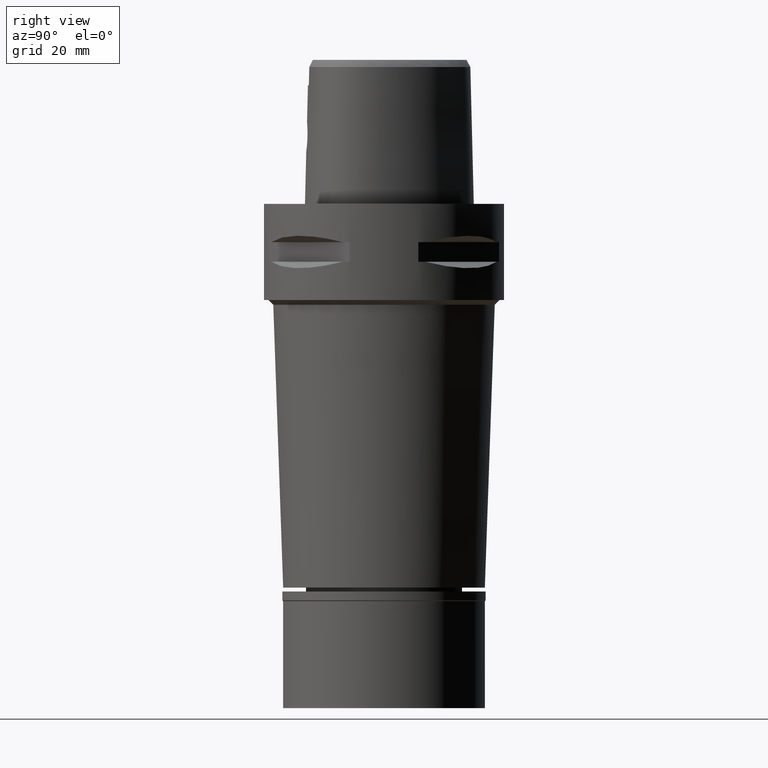
[diagram: clean part render]
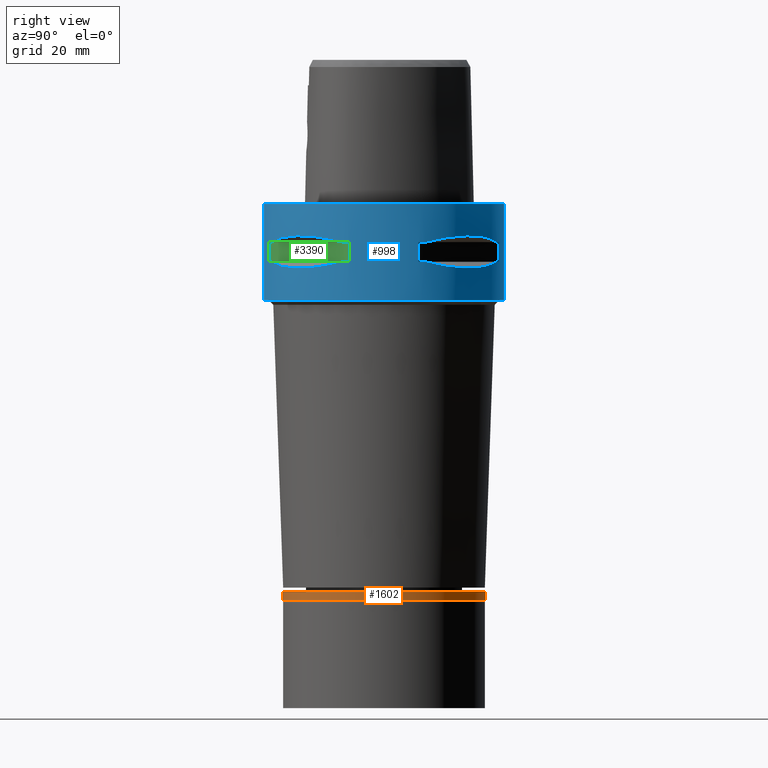
[diagram: same view with three faces highlighted in distinct colors, each labeled with its STEP entity id]
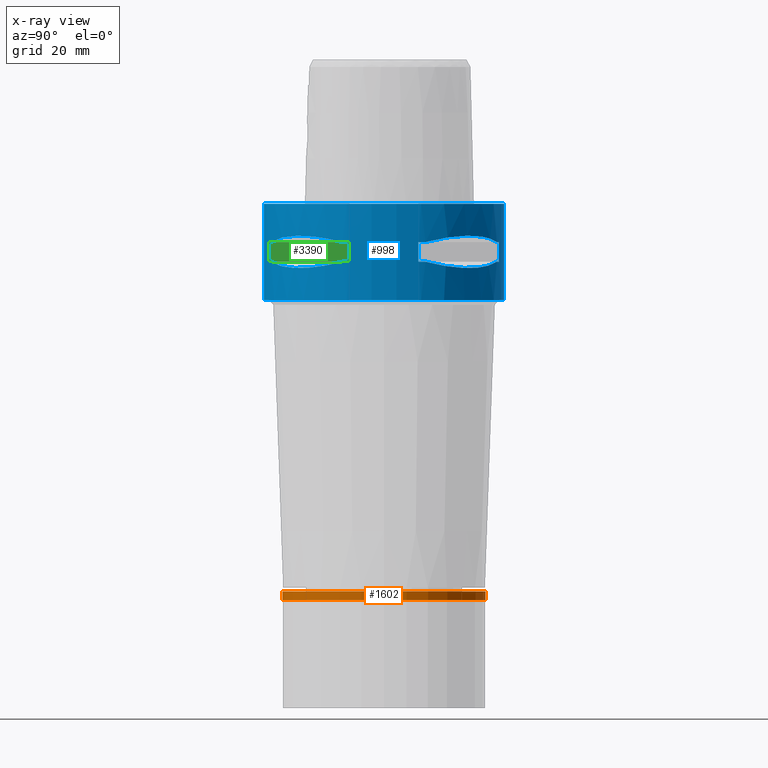
[diagram: x-ray of the same camera — body ghosted, the three highlighted faces saturated]
A machine part, right view with three faces highlighted in distinct colors.
The next image is the same camera in x-ray (body ghosted, the three faces saturated) — at least one of them is partly hidden behind the body in this view.
Their STEP definitions:

[orange] entity #1602 — the highlighted cylindrical surface (partial cylindrical patch) has radius 21.15 mm, axis along (0, 0, -1).
#52 = CARTESIAN_POINT ( 'NONE',  ( 0.0000000000000000000, 21.14999999999999858, -1.850000000000000089 ) ) ;
#74 = VERTEX_POINT ( 'NONE', #752 ) ;
#195 = CARTESIAN_POINT ( 'NONE',  ( 0.0000000000000000000, 21.14999999999999858, 0.0000000000000000000 ) ) ;
#276 = DIRECTION ( 'NONE',  ( 0.0000000000000000000, 0.0000000000000000000, -1.000000000000000000 ) ) ;
#301 = DIRECTION ( 'NONE',  ( 0.0000000000000000000, -1.000000000000000000, 0.0000000000000000000 ) ) ;
#303 = AXIS2_PLACEMENT_3D ( 'NONE', #1015, #812, #2532 ) ;
#395 = ORIENTED_EDGE ( 'NONE', *, *, #832, .F. ) ;
#512 = DIRECTION ( 'NONE',  ( 0.0000000000000000000, 0.0000000000000000000, -1.000000000000000000 ) ) ;
#614 = ORIENTED_EDGE ( 'NONE', *, *, #3418, .T. ) ;
#694 = CARTESIAN_POINT ( 'NONE',  ( 0.0000000000000000000, 0.0000000000000000000, 0.0000000000000000000 ) ) ;
#752 = CARTESIAN_POINT ( 'NONE',  ( 0.0000000000000000000, 21.14999999999999858, 0.0000000000000000000 ) ) ;
#758 = VECTOR ( 'NONE', #276, 1000.000000000000000 ) ;
#812 = DIRECTION ( 'NONE',  ( 0.0000000000000000000, 0.0000000000000000000, -1.000000000000000000 ) ) ;
#832 = EDGE_CURVE ( 'NONE', #74, #3149, #2487, .T. ) ;
#1015 = CARTESIAN_POINT ( 'NONE',  ( 0.0000000000000000000, 0.0000000000000000000, 0.0000000000000000000 ) ) ;
#1253 = EDGE_LOOP ( 'NONE', ( #614, #2496, #1974, #395 ) ) ;
#1572 = CARTESIAN_POINT ( 'NONE',  ( 0.0000000000000000000, -21.14999999999999858, 0.0000000000000000000 ) ) ;
#1602 = ADVANCED_FACE ( 'NONE', ( #3030 ), #3814, .T. ) ;
#1608 = CIRCLE ( 'NONE', #4533, 21.14999999999999858 ) ;
#1720 = DIRECTION ( 'NONE',  ( 0.0000000000000000000, 0.0000000000000000000, -1.000000000000000000 ) ) ;
#1799 = DIRECTION ( 'NONE',  ( 0.0000000000000000000, 0.0000000000000000000, 1.000000000000000000 ) ) ;
#1974 = ORIENTED_EDGE ( 'NONE', *, *, #2541, .T. ) ;
#2003 = EDGE_CURVE ( 'NONE', #4267, #2977, #2390, .T. ) ;
#2030 = CIRCLE ( 'NONE', #4793, 21.14999999999999858 ) ;
#2390 = LINE ( 'NONE', #1572, #4789 ) ;
#2487 = LINE ( 'NONE', #195, #758 ) ;
#2496 = ORIENTED_EDGE ( 'NONE', *, *, #2003, .T. ) ;
#2532 = DIRECTION ( 'NONE',  ( 0.0000000000000000000, -1.000000000000000000, 0.0000000000000000000 ) ) ;
#2539 = CARTESIAN_POINT ( 'NONE',  ( 0.0000000000000000000, 0.0000000000000000000, -1.850000000000000089 ) ) ;
#2541 = EDGE_CURVE ( 'NONE', #2977, #3149, #2030, .T. ) ;
#2574 = CARTESIAN_POINT ( 'NONE',  ( 0.0000000000000000000, -21.14999999999999858, 0.0000000000000000000 ) ) ;
#2977 = VERTEX_POINT ( 'NONE', #3931 ) ;
#3030 = FACE_OUTER_BOUND ( 'NONE', #1253, .T. ) ;
#3149 = VERTEX_POINT ( 'NONE', #52 ) ;
#3418 = EDGE_CURVE ( 'NONE', #74, #4267, #1608, .T. ) ;
#3814 = CYLINDRICAL_SURFACE ( 'NONE', #303, 21.14999999999999858 ) ;
#3931 = CARTESIAN_POINT ( 'NONE',  ( 0.0000000000000000000, -21.14999999999999858, -1.850000000000000089 ) ) ;
#3990 = DIRECTION ( 'NONE',  ( 0.0000000000000000000, 1.000000000000000000, 0.0000000000000000000 ) ) ;
#4267 = VERTEX_POINT ( 'NONE', #2574 ) ;
#4533 = AXIS2_PLACEMENT_3D ( 'NONE', #694, #1720, #3990 ) ;
#4789 = VECTOR ( 'NONE', #512, 1000.000000000000000 ) ;
#4793 = AXIS2_PLACEMENT_3D ( 'NONE', #2539, #1799, #301 ) ;

[blue] entity #998 — the highlighted cylindrical surface (partial cylindrical patch) has radius 25 mm, axis along (0, 0, -1).
#22 = CARTESIAN_POINT ( 'NONE',  ( 23.45715880140000209, 8.646484890756999775, -12.05000000000000071 ) ) ;
#48 = ORIENTED_EDGE ( 'NONE', *, *, #1483, .F. ) ;
#111 = CARTESIAN_POINT ( 'NONE',  ( 7.159921374230999724, 23.95277699797999915, -7.950000000000000178 ) ) ;
#129 = CIRCLE ( 'NONE', #2412, 24.99999999999999645 ) ;
#183 = CARTESIAN_POINT ( 'NONE',  ( 10.36314631860608593, -22.82438450745432945, -7.507504930525397135 ) ) ;
#243 = VERTEX_POINT ( 'NONE', #3034 ) ;
#271 = LINE ( 'NONE', #4782, #299 ) ;
#277 = VERTEX_POINT ( 'NONE', #3128 ) ;
#284 = ORIENTED_EDGE ( 'NONE', *, *, #3300, .F. ) ;
#293 = DIRECTION ( 'NONE',  ( 0.2863968549694120291, 0.9581110799190402094, 0.0000000000000000000 ) ) ;
#296 = ORIENTED_EDGE ( 'NONE', *, *, #4408, .T. ) ;
#299 = VECTOR ( 'NONE', #4298, 1000.000000000000000 ) ;
#351 = CARTESIAN_POINT ( 'NONE',  ( 10.36318218122983481, 22.82437128822192207, -7.507495686399606960 ) ) ;
#404 = VERTEX_POINT ( 'NONE', #2058 ) ;
#415 = CARTESIAN_POINT ( 'NONE',  ( 22.82437128822188654, -10.36318218122986856, -7.507495686399606960 ) ) ;
#485 = ORIENTED_EDGE ( 'NONE', *, *, #1908, .F. ) ;
#520 = CARTESIAN_POINT ( 'NONE',  ( 7.159921374230999724, -23.95277699797999915, -7.950000000000000178 ) ) ;
#562 = CARTESIAN_POINT ( 'NONE',  ( 23.95277699797999915, 7.159921374230999724, -7.950000000000000178 ) ) ;
#600 = AXIS2_PLACEMENT_3D ( 'NONE', #2042, #874, #2728 ) ;
#690 = CARTESIAN_POINT ( 'NONE',  ( 13.48572973711064193, -21.05082155772163688, -13.04323036965292637 ) ) ;
#722 = CARTESIAN_POINT ( 'NONE',  ( 20.06077645874710313, 15.02693924547574866, -6.733132781305681824 ) ) ;
#728 = VERTEX_POINT ( 'NONE', #4387 ) ;
#737 = CARTESIAN_POINT ( 'NONE',  ( 21.09754014381971388, 13.41274673326716282, -13.03250796600833716 ) ) ;
#766 = EDGE_CURVE ( 'NONE', #1772, #243, #2101, .T. ) ;
#805 = FACE_BOUND ( 'NONE', #1941, .T. ) ;
#822 = DIRECTION ( 'NONE',  ( 0.0000000000000000000, 0.0000000000000000000, -1.000000000000000000 ) ) ;
#831 = CIRCLE ( 'NONE', #600, 24.99999999999999645 ) ;
#833 = CARTESIAN_POINT ( 'NONE',  ( 18.30096971348435630, -17.05439749817190176, -13.37751056790094850 ) ) ;
#845 = VERTEX_POINT ( 'NONE', #1392 ) ;
#850 = EDGE_CURVE ( 'NONE', #728, #277, #129, .T. ) ;
#874 = DIRECTION ( 'NONE',  ( 0.0000000000000000000, 0.0000000000000000000, 1.000000000000000000 ) ) ;
#879 = CARTESIAN_POINT ( 'NONE',  ( 19.18226349639588690, -16.07509500018327131, -13.33749867752016449 ) ) ;
#895 = FACE_BOUND ( 'NONE', #4113, .T. ) ;
#912 = DIRECTION ( 'NONE',  ( 0.9382863520558295534, 0.3458593956303108730, 0.0000000000000000000 ) ) ;
#914 = VECTOR ( 'NONE', #949, 1000.000000000000000 ) ;
#942 = EDGE_CURVE ( 'NONE', #2945, #1302, #1493, .T. ) ;
#949 = DIRECTION ( 'NONE',  ( 0.0000000000000000000, 0.0000000000000000000, -1.000000000000000000 ) ) ;
#952 = CARTESIAN_POINT ( 'NONE',  ( 23.45715880140000209, 8.646484890751999330, -7.949999999998999201 ) ) ;
#987 = VERTEX_POINT ( 'NONE', #111 ) ;
#998 = ADVANCED_FACE ( 'NONE', ( #1610, #805, #895 ), #4556, .T. ) ;
#1002 = CARTESIAN_POINT ( 'NONE',  ( 0.0000000000000000000, 1.284348330606000068E-14, -7.950000000000000178 ) ) ;
#1024 = DIRECTION ( 'NONE',  ( 0.0000000000000000000, -1.000000000000000000, 0.0000000000000000000 ) ) ;
#1043 = LINE ( 'NONE', #2691, #1942 ) ;
#1054 = CARTESIAN_POINT ( 'NONE',  ( 14.22535762328483067, 20.56020460723039278, -13.14488865845230592 ) ) ;
#1061 = EDGE_CURVE ( 'NONE', #3734, #2086, #831, .T. ) ;
#1102 = CARTESIAN_POINT ( 'NONE',  ( 20.02826730452214932, 15.06560254769159712, -13.27075471794772277 ) ) ;
#1139 = EDGE_CURVE ( 'NONE', #2951, #987, #271, .T. ) ;
#1144 = CARTESIAN_POINT ( 'NONE',  ( 12.03062603423778754, 21.99328990739221013, -12.83394786307672675 ) ) ;
#1177 = DIRECTION ( 'NONE',  ( 0.0000000000000000000, 0.0000000000000000000, -1.000000000000000000 ) ) ;
#1215 = CARTESIAN_POINT ( 'NONE',  ( 13.55971422200820520, -21.00321793043535479, -13.05400030967370206 ) ) ;
#1218 = AXIS2_PLACEMENT_3D ( 'NONE', #4030, #1177, #293 ) ;
#1222 = DIRECTION ( 'NONE',  ( 0.0000000000000000000, 0.0000000000000000000, -1.000000000000000000 ) ) ;
#1263 = CARTESIAN_POINT ( 'NONE',  ( 20.88268233906207172, -13.74471461761599400, -13.08031795579753087 ) ) ;
#1264 = VERTEX_POINT ( 'NONE', #2068 ) ;
#1277 = CARTESIAN_POINT ( 'NONE',  ( 23.45715880140000209, 8.646484890756999775, -12.05000000000000071 ) ) ;
#1279 = AXIS2_PLACEMENT_3D ( 'NONE', #2899, #2821, #1383 ) ;
#1300 = CARTESIAN_POINT ( 'NONE',  ( 11.99631184311069099, -22.00754773658079344, -7.175632472892017333 ) ) ;
#1302 = VERTEX_POINT ( 'NONE', #3803 ) ;
#1314 = DIRECTION ( 'NONE',  ( 0.0000000000000000000, 0.0000000000000000000, 1.000000000000000000 ) ) ;
#1317 = AXIS2_PLACEMENT_3D ( 'NONE', #3954, #4670, #912 ) ;
#1321 = LINE ( 'NONE', #520, #2248 ) ;
#1332 = LINE ( 'NONE', #3213, #4865 ) ;
#1359 = ORIENTED_EDGE ( 'NONE', *, *, #850, .T. ) ;
#1383 = DIRECTION ( 'NONE',  ( 0.9581110799190402094, 0.2863968549694120291, 0.0000000000000000000 ) ) ;
#1392 = CARTESIAN_POINT ( 'NONE',  ( 23.95277699797999915, 7.159921374235000080, -7.950000000000000178 ) ) ;
#1402 = AXIS2_PLACEMENT_3D ( 'NONE', #2093, #1718, #1024 ) ;
#1455 = ORIENTED_EDGE ( 'NONE', *, *, #4783, .T. ) ;
#1468 = CARTESIAN_POINT ( 'NONE',  ( 23.13678124604550845, 9.515641234313701347, -12.27403800213050111 ) ) ;
#1481 = CIRCLE ( 'NONE', #2520, 25.00000000000000000 ) ;
#1483 = EDGE_CURVE ( 'NONE', #728, #243, #1332, .T. ) ;
#1490 = CARTESIAN_POINT ( 'NONE',  ( 21.82791133047632215, 12.20403021319857828, -12.83722430139150994 ) ) ;
#1493 = B_SPLINE_CURVE_WITH_KNOTS ( 'NONE', 3,
 ( #22, #1468, #1919, #1490, #3762, #4468, #737, #4096, #1514, #2635, #1102, #4441, #2287, #3785, #3423, #1054, #2660, #2199, #3021, #4531, #3739, #1144, #2983, #3696 ),
 .UNSPECIFIED., .F., .F.,
 ( 4, 1, 1, 1, 1, 1, 2, 2, 2, 1, 1, 1, 1, 1, 2, 2, 4 ),
 ( 0.0000000000000000000, 0.1249999999999982236, 0.1874999999999974465, 0.2187499999999970302, 0.2343749999999969469, 0.2421874999999968081, 0.2460937499999968359, 0.2499999999999968914, 0.4999999999999973355, 0.6249999999999973355, 0.6874999999999976685, 0.7187499999999978906, 0.7343749999999980016, 0.7421874999999980016, 0.7460937499999978906, 0.7499999999999978906, 1.000000000000000000 ),
 .UNSPECIFIED. ) ;
#1514 = CARTESIAN_POINT ( 'NONE',  ( 21.01958685664017068, 13.53433973752500918, -13.05032380590188446 ) ) ;
#1535 = EDGE_CURVE ( 'NONE', #1881, #987, #2024, .T. ) ;
#1539 = AXIS2_PLACEMENT_3D ( 'NONE', #2704, #2406, #3092 ) ;
#1591 = CARTESIAN_POINT ( 'NONE',  ( 13.53433973752400554, -21.01958685664054372, -13.05032380590162333 ) ) ;
#1610 = FACE_OUTER_BOUND ( 'NONE', #3160, .T. ) ;
#1635 = EDGE_CURVE ( 'NONE', #2951, #1302, #3437, .T. ) ;
#1636 = CARTESIAN_POINT ( 'NONE',  ( 0.0000000000000000000, 1.284348330606000068E-14, -12.05000000000000071 ) ) ;
#1664 = EDGE_CURVE ( 'NONE', #404, #4878, #1043, .T. ) ;
#1671 = CARTESIAN_POINT ( 'NONE',  ( 23.45715880140000209, -8.646484890751999330, -12.05000000000000071 ) ) ;
#1718 = DIRECTION ( 'NONE',  ( 0.0000000000000000000, 0.0000000000000000000, 1.000000000000000000 ) ) ;
#1772 = VERTEX_POINT ( 'NONE', #4599 ) ;
#1819 = ORIENTED_EDGE ( 'NONE', *, *, #1635, .T. ) ;
#1848 = CARTESIAN_POINT ( 'NONE',  ( 22.00754773658079344, 11.99631184311074428, -7.175632472892017333 ) ) ;
#1856 = EDGE_CURVE ( 'NONE', #845, #2414, #3936, .T. ) ;
#1881 = VERTEX_POINT ( 'NONE', #2461 ) ;
#1908 = EDGE_CURVE ( 'NONE', #4563, #277, #4570, .T. ) ;
#1919 = CARTESIAN_POINT ( 'NONE',  ( 22.58788056560981516, 10.78455809748034788, -12.56798337783676267 ) ) ;
#1941 = EDGE_LOOP ( 'NONE', ( #1960, #48, #1359, #485, #3098, #4591, #4524, #3733 ) ) ;
#1942 = VECTOR ( 'NONE', #3292, 1000.000000000000000 ) ;
#1950 = CARTESIAN_POINT ( 'NONE',  ( 15.06560254765663132, -20.02826730455345583, -13.27075471794622885 ) ) ;
#1960 = ORIENTED_EDGE ( 'NONE', *, *, #766, .T. ) ;
#2024 = CIRCLE ( 'NONE', #2259, 25.00000000000001066 ) ;
#2042 = CARTESIAN_POINT ( 'NONE',  ( 0.0000000000000000000, 1.284348330606000068E-14, -7.950000000000000178 ) ) ;
#2058 = CARTESIAN_POINT ( 'NONE',  ( 0.0000000000000000000, -25.00000000000000000, 0.0000000000000000000 ) ) ;
#2059 = CARTESIAN_POINT ( 'NONE',  ( 7.159921374235000080, -23.95277699797999915, -7.950000000000000178 ) ) ;
#2068 = CARTESIAN_POINT ( 'NONE',  ( 0.0000000000000000000, 25.00000000000000000, -20.00000000000000000 ) ) ;
#2082 = CARTESIAN_POINT ( 'NONE',  ( 16.42437865151175558, -18.93096040781560774, -6.622505547253060953 ) ) ;
#2086 = VERTEX_POINT ( 'NONE', #3498 ) ;
#2093 = CARTESIAN_POINT ( 'NONE',  ( 0.0000000000000000000, 1.284348330606000068E-14, -20.00000000000000000 ) ) ;
#2101 = CIRCLE ( 'NONE', #2885, 25.00000000000001066 ) ;
#2110 = CARTESIAN_POINT ( 'NONE',  ( 0.0000000000000000000, 1.284348330606000068E-14, -7.950000000000000178 ) ) ;
#2167 = CIRCLE ( 'NONE', #1279, 24.99999999999999645 ) ;
#2194 = CARTESIAN_POINT ( 'NONE',  ( 12.20403021317722292, -21.82791133048418786, -12.83722430138600323 ) ) ;
#2199 = CARTESIAN_POINT ( 'NONE',  ( 13.74471461761685198, 20.88268233906084248, -13.08031795579737455 ) ) ;
#2223 = CARTESIAN_POINT ( 'NONE',  ( 15.02698525050126044, 20.06074199764951871, -6.733118915116994785 ) ) ;
#2248 = VECTOR ( 'NONE', #1222, 1000.000000000000000 ) ;
#2259 = AXIS2_PLACEMENT_3D ( 'NONE', #2110, #3608, #3242 ) ;
#2282 = DIRECTION ( 'NONE',  ( 0.0000000000000000000, 0.0000000000000000000, -1.000000000000000000 ) ) ;
#2287 = CARTESIAN_POINT ( 'NONE',  ( 17.05439749817592343, 18.30096971347850499, -13.37751056790020598 ) ) ;
#2314 = CARTESIAN_POINT ( 'NONE',  ( 20.95817024473895174, -13.62920640916654591, -13.06397973560678061 ) ) ;
#2339 = CARTESIAN_POINT ( 'NONE',  ( 20.56020460723486565, -14.22535762328174691, -13.14488865845287080 ) ) ;
#2342 = AXIS2_PLACEMENT_3D ( 'NONE', #1636, #822, #3537 ) ;
#2369 = ORIENTED_EDGE ( 'NONE', *, *, #4655, .T. ) ;
#2406 = DIRECTION ( 'NONE',  ( 0.0000000000000000000, 0.0000000000000000000, -1.000000000000000000 ) ) ;
#2412 = AXIS2_PLACEMENT_3D ( 'NONE', #3278, #2908, #4413 ) ;
#2414 = VERTEX_POINT ( 'NONE', #3516 ) ;
#2444 = ORIENTED_EDGE ( 'NONE', *, *, #1664, .T. ) ;
#2461 = CARTESIAN_POINT ( 'NONE',  ( 8.646484890751999330, 23.45715880140000209, -7.949999999998999201 ) ) ;
#2464 = CARTESIAN_POINT ( 'NONE',  ( 22.82438450745431524, 10.36314631860615876, -7.507504930525397135 ) ) ;
#2498 = CARTESIAN_POINT ( 'NONE',  ( 7.159921374230999724, -23.95277699797999915, -12.05000000000000071 ) ) ;
#2520 = AXIS2_PLACEMENT_3D ( 'NONE', #4290, #2282, #2817 ) ;
#2555 = ORIENTED_EDGE ( 'NONE', *, *, #942, .F. ) ;
#2598 = CARTESIAN_POINT ( 'NONE',  ( 16.42437865151178045, 18.93096040781560063, -6.622496303226941272 ) ) ;
#2635 = CARTESIAN_POINT ( 'NONE',  ( 21.00321793043583796, 13.55971422200765630, -13.05400030967367897 ) ) ;
#2660 = CARTESIAN_POINT ( 'NONE',  ( 13.90573822668135406, 20.77616787493428774, -13.10257122103294058 ) ) ;
#2689 = EDGE_CURVE ( 'NONE', #4563, #4010, #2978, .T. ) ;
#2691 = CARTESIAN_POINT ( 'NONE',  ( 0.0000000000000000000, -25.00000000000000000, 0.0000000000000000000 ) ) ;
#2704 = CARTESIAN_POINT ( 'NONE',  ( 0.0000000000000000000, 1.284348330606000068E-14, 4.875000000000000000 ) ) ;
#2728 = DIRECTION ( 'NONE',  ( 0.2863968549694120291, -0.9581110799190402094, 0.0000000000000000000 ) ) ;
#2734 = CARTESIAN_POINT ( 'NONE',  ( 20.77616787493668937, -13.90573822667970916, -13.10257122103325145 ) ) ;
#2782 = ORIENTED_EDGE ( 'NONE', *, *, #3688, .T. ) ;
#2817 = DIRECTION ( 'NONE',  ( 0.0000000000000000000, 1.000000000000000000, 0.0000000000000000000 ) ) ;
#2821 = DIRECTION ( 'NONE',  ( 0.0000000000000000000, 0.0000000000000000000, 1.000000000000000000 ) ) ;
#2829 = DIRECTION ( 'NONE',  ( 0.9382863520558295534, -0.3458593956303108730, 0.0000000000000000000 ) ) ;
#2862 = CARTESIAN_POINT ( 'NONE',  ( 0.0000000000000000000, -25.00000000000000000, -20.00000000000000000 ) ) ;
#2882 = VERTEX_POINT ( 'NONE', #4323 ) ;
#2885 = AXIS2_PLACEMENT_3D ( 'NONE', #1002, #1314, #2829 ) ;
#2898 = EDGE_CURVE ( 'NONE', #845, #2882, #2167, .T. ) ;
#2899 = CARTESIAN_POINT ( 'NONE',  ( 0.0000000000000000000, 1.284348330606000068E-14, -7.950000000000000178 ) ) ;
#2908 = DIRECTION ( 'NONE',  ( 0.0000000000000000000, 0.0000000000000000000, -1.000000000000000000 ) ) ;
#2911 = CIRCLE ( 'NONE', #1402, 25.00000000000000000 ) ;
#2926 = B_SPLINE_CURVE_WITH_KNOTS ( 'NONE', 3,
 ( #952, #2464, #1848, #722, #2957, #2598, #2223, #3720, #351, #3354 ),
 .UNSPECIFIED., .F., .F.,
 ( 4, 2, 2, 2, 4 ),
 ( 0.0000000000000000000, 0.2500000000000000000, 0.5000000000000000000, 0.7500000000000000000, 1.000000000000000000 ),
 .UNSPECIFIED. ) ;
#2945 = VERTEX_POINT ( 'NONE', #1277 ) ;
#2951 = VERTEX_POINT ( 'NONE', #4753 ) ;
#2954 = CARTESIAN_POINT ( 'NONE',  ( 10.78455809745186755, -22.58788056562029922, -12.56798337782941566 ) ) ;
#2957 = CARTESIAN_POINT ( 'NONE',  ( 18.93096040781554024, 16.42437865151185505, -6.622505547253060953 ) ) ;
#2978 = CIRCLE ( 'NONE', #2342, 25.00000000000001066 ) ;
#2983 = CARTESIAN_POINT ( 'NONE',  ( 10.38516041958474645, 22.81626994451295332, -12.49816953211793802 ) ) ;
#3021 = CARTESIAN_POINT ( 'NONE',  ( 13.67544437571146609, 20.92801700160250533, -13.07054629644086674 ) ) ;
#3034 = CARTESIAN_POINT ( 'NONE',  ( 23.95277699797999915, -7.159921374230999724, -7.950000000000000178 ) ) ;
#3042 = CARTESIAN_POINT ( 'NONE',  ( 23.45715880140000209, -8.646484890751999330, -7.949999999998999201 ) ) ;
#3069 = ORIENTED_EDGE ( 'NONE', *, *, #1856, .F. ) ;
#3092 = DIRECTION ( 'NONE',  ( 0.0000000000000000000, -1.000000000000000000, 0.0000000000000000000 ) ) ;
#3098 = ORIENTED_EDGE ( 'NONE', *, *, #2689, .T. ) ;
#3128 = CARTESIAN_POINT ( 'NONE',  ( 23.45715880140000209, -8.646484890751999330, -12.05000000000000071 ) ) ;
#3160 = EDGE_LOOP ( 'NONE', ( #2369, #2444, #296, #284 ) ) ;
#3210 = CARTESIAN_POINT ( 'NONE',  ( 20.06074199764950095, -15.02698525050125156, -6.733118915116994785 ) ) ;
#3213 = CARTESIAN_POINT ( 'NONE',  ( 23.95277699797999915, -7.159921374230999724, -12.05000000000000071 ) ) ;
#3242 = DIRECTION ( 'NONE',  ( 0.3458593956303108730, 0.9382863520558295534, 0.0000000000000000000 ) ) ;
#3278 = CARTESIAN_POINT ( 'NONE',  ( 0.0000000000000000000, 1.284348330606000068E-14, -12.05000000000000071 ) ) ;
#3292 = DIRECTION ( 'NONE',  ( 0.0000000000000000000, 0.0000000000000000000, -1.000000000000000000 ) ) ;
#3300 = EDGE_CURVE ( 'NONE', #4343, #1264, #3919, .T. ) ;
#3305 = EDGE_CURVE ( 'NONE', #3734, #4010, #1321, .T. ) ;
#3330 = CARTESIAN_POINT ( 'NONE',  ( 13.41274673326371314, -21.09754014382099285, -13.03250796600744721 ) ) ;
#3354 = CARTESIAN_POINT ( 'NONE',  ( 8.646484890751999330, 23.45715880140000209, -7.949999999998999201 ) ) ;
#3423 = CARTESIAN_POINT ( 'NONE',  ( 14.85488513038957592, 20.11654071401955335, -13.22076716108393413 ) ) ;
#3437 = CIRCLE ( 'NONE', #1218, 24.99999999999999645 ) ;
#3460 = CIRCLE ( 'NONE', #1317, 25.00000000000001066 ) ;
#3498 = CARTESIAN_POINT ( 'NONE',  ( 8.646484890751999330, -23.45715880140000209, -7.949999999998999201 ) ) ;
#3516 = CARTESIAN_POINT ( 'NONE',  ( 23.95277699797999915, 7.159921374230999724, -12.05000000000000071 ) ) ;
#3537 = DIRECTION ( 'NONE',  ( 0.3458593956303108730, -0.9382863520558295534, 0.0000000000000000000 ) ) ;
#3546 = CARTESIAN_POINT ( 'NONE',  ( 20.97251445226583755, -13.60713573003076071, -13.06082541678112641 ) ) ;
#3555 = CARTESIAN_POINT ( 'NONE',  ( 8.646484890751999330, -23.45715880140000209, -7.949999999998999201 ) ) ;
#3579 = CARTESIAN_POINT ( 'NONE',  ( 18.93096040781557221, -16.42437865151179466, -6.622496303226941272 ) ) ;
#3608 = DIRECTION ( 'NONE',  ( 0.0000000000000000000, 0.0000000000000000000, 1.000000000000000000 ) ) ;
#3679 = ORIENTED_EDGE ( 'NONE', *, *, #2898, .T. ) ;
#3688 = EDGE_CURVE ( 'NONE', #2882, #1881, #2926, .T. ) ;
#3690 = CARTESIAN_POINT ( 'NONE',  ( 12.89853354821786624, -21.41803043592453548, -12.95342092614003349 ) ) ;
#3696 = CARTESIAN_POINT ( 'NONE',  ( 8.646484890751999330, 23.45715880140000209, -12.05000000000000071 ) ) ;
#3720 = CARTESIAN_POINT ( 'NONE',  ( 11.99636231264435615, 22.00752022556853404, -7.175618606703328517 ) ) ;
#3733 = ORIENTED_EDGE ( 'NONE', *, *, #4813, .T. ) ;
#3734 = VERTEX_POINT ( 'NONE', #2059 ) ;
#3736 = CARTESIAN_POINT ( 'NONE',  ( 8.646484890756999775, -23.45715880140000209, -12.05000000000000071 ) ) ;
#3738 = VECTOR ( 'NONE', #4314, 1000.000000000000000 ) ;
#3739 = CARTESIAN_POINT ( 'NONE',  ( 13.60713573003037880, 20.97251445226597966, -13.06082541678103404 ) ) ;
#3762 = CARTESIAN_POINT ( 'NONE',  ( 21.41803043591995959, 12.89853354823032738, -12.95342092614324869 ) ) ;
#3785 = CARTESIAN_POINT ( 'NONE',  ( 16.07509500019029502, 19.18226349638565509, -13.33749867751885532 ) ) ;
#3803 = CARTESIAN_POINT ( 'NONE',  ( 8.646484890751999330, 23.45715880140000209, -12.05000000000000071 ) ) ;
#3864 = CARTESIAN_POINT ( 'NONE',  ( 20.92801700160322298, -13.67544437571097404, -13.07054629644096444 ) ) ;
#3885 = CARTESIAN_POINT ( 'NONE',  ( 21.99328990740119139, -12.03062603421341770, -12.83394786307044022 ) ) ;
#3912 = CARTESIAN_POINT ( 'NONE',  ( 22.81626994452193458, -10.38516041956038727, -12.49816953211166037 ) ) ;
#3919 = LINE ( 'NONE', #4338, #3738 ) ;
#3936 = LINE ( 'NONE', #562, #914 ) ;
#3954 = CARTESIAN_POINT ( 'NONE',  ( 0.0000000000000000000, 1.284348330606000068E-14, -12.05000000000000071 ) ) ;
#3968 = ORIENTED_EDGE ( 'NONE', *, *, #1535, .T. ) ;
#3981 = DIRECTION ( 'NONE',  ( 0.0000000000000000000, 0.0000000000000000000, 1.000000000000000000 ) ) ;
#4010 = VERTEX_POINT ( 'NONE', #2498 ) ;
#4030 = CARTESIAN_POINT ( 'NONE',  ( 0.0000000000000000000, 1.284348330606000068E-14, -12.05000000000000071 ) ) ;
#4063 = CARTESIAN_POINT ( 'NONE',  ( 8.646484890756999775, -23.45715880140000209, -12.05000000000000071 ) ) ;
#4096 = CARTESIAN_POINT ( 'NONE',  ( 21.05082155772089436, 13.48572973711263323, -13.04323036965343618 ) ) ;
#4113 = EDGE_LOOP ( 'NONE', ( #3968, #4181, #1819, #2555, #1455, #3069, #3679, #2782 ) ) ;
#4133 = B_SPLINE_CURVE_WITH_KNOTS ( 'NONE', 3,
 ( #3555, #183, #1300, #4319, #2082, #3579, #3210, #4156, #415, #3042 ),
 .UNSPECIFIED., .F., .F.,
 ( 4, 2, 2, 2, 4 ),
 ( 0.0000000000000000000, 0.2500000000000000000, 0.5000000000000000000, 0.7500000000000000000, 1.000000000000000000 ),
 .UNSPECIFIED. ) ;
#4156 = CARTESIAN_POINT ( 'NONE',  ( 22.00752022556849496, -11.99636231264437214, -7.175618606703328517 ) ) ;
#4181 = ORIENTED_EDGE ( 'NONE', *, *, #1139, .F. ) ;
#4290 = CARTESIAN_POINT ( 'NONE',  ( 0.0000000000000000000, 1.284348330606000068E-14, 0.0000000000000000000 ) ) ;
#4298 = DIRECTION ( 'NONE',  ( 0.0000000000000000000, 0.0000000000000000000, 1.000000000000000000 ) ) ;
#4314 = DIRECTION ( 'NONE',  ( 0.0000000000000000000, 0.0000000000000000000, -1.000000000000000000 ) ) ;
#4319 = CARTESIAN_POINT ( 'NONE',  ( 15.02693924547570070, -20.06077645874711379, -6.733132781305681824 ) ) ;
#4323 = CARTESIAN_POINT ( 'NONE',  ( 23.45715880140000209, 8.646484890751999330, -7.949999999998999201 ) ) ;
#4338 = CARTESIAN_POINT ( 'NONE',  ( 0.0000000000000000000, 25.00000000000000000, 0.0000000000000000000 ) ) ;
#4343 = VERTEX_POINT ( 'NONE', #4494 ) ;
#4387 = CARTESIAN_POINT ( 'NONE',  ( 23.95277699797999915, -7.159921374235000080, -12.05000000000000071 ) ) ;
#4408 = EDGE_CURVE ( 'NONE', #4878, #1264, #2911, .T. ) ;
#4413 = DIRECTION ( 'NONE',  ( 0.9581110799190402094, -0.2863968549694120291, 0.0000000000000000000 ) ) ;
#4441 = CARTESIAN_POINT ( 'NONE',  ( 18.92421359264142211, 16.43106916203626611, -13.37747608848383329 ) ) ;
#4461 = CARTESIAN_POINT ( 'NONE',  ( 13.24197703503267931, -21.20561591939681634, -13.00691327926098495 ) ) ;
#4468 = CARTESIAN_POINT ( 'NONE',  ( 21.20561591939435786, 13.24197703503935486, -13.00691327926270446 ) ) ;
#4494 = CARTESIAN_POINT ( 'NONE',  ( 0.0000000000000000000, 25.00000000000000000, 0.0000000000000000000 ) ) ;
#4524 = ORIENTED_EDGE ( 'NONE', *, *, #1061, .T. ) ;
#4531 = CARTESIAN_POINT ( 'NONE',  ( 13.62920640916679993, 20.95817024473859291, -13.06397973560673265 ) ) ;
#4556 = CYLINDRICAL_SURFACE ( 'NONE', #1539, 25.00000000000000000 ) ;
#4563 = VERTEX_POINT ( 'NONE', #3736 ) ;
#4570 = B_SPLINE_CURVE_WITH_KNOTS ( 'NONE', 3,
 ( #4063, #4837, #2954, #2194, #3690, #4461, #3330, #690, #1591, #1215, #1950, #4661, #833, #879, #4634, #2339, #2734, #1263, #3864, #2314, #3546, #3885, #3912, #1671 ),
 .UNSPECIFIED., .F., .F.,
 ( 4, 1, 1, 1, 1, 1, 2, 2, 2, 1, 1, 1, 1, 1, 2, 2, 4 ),
 ( 0.0000000000000000000, 0.1250000000000068834, 0.1875000000000101308, 0.2187500000000117406, 0.2343750000000125733, 0.2421875000000129341, 0.2460937500000130174, 0.2500000000000131006, 0.5000000000000111022, 0.6250000000000101030, 0.6875000000000099920, 0.7187500000000099920, 0.7343750000000099920, 0.7421875000000098810, 0.7460937500000098810, 0.7500000000000098810, 1.000000000000000000 ),
 .UNSPECIFIED. ) ;
#4591 = ORIENTED_EDGE ( 'NONE', *, *, #3305, .F. ) ;
#4599 = CARTESIAN_POINT ( 'NONE',  ( 23.45715880140000209, -8.646484890751999330, -7.949999999998999201 ) ) ;
#4634 = CARTESIAN_POINT ( 'NONE',  ( 20.11654071402723432, -14.85488513038430192, -13.22076716108491290 ) ) ;
#4655 = EDGE_CURVE ( 'NONE', #4343, #404, #1481, .T. ) ;
#4661 = CARTESIAN_POINT ( 'NONE',  ( 16.43106916202457057, -18.92421359264944769, -13.37747608848233760 ) ) ;
#4670 = DIRECTION ( 'NONE',  ( 0.0000000000000000000, 0.0000000000000000000, -1.000000000000000000 ) ) ;
#4753 = CARTESIAN_POINT ( 'NONE',  ( 7.159921374235000080, 23.95277699797999915, -12.05000000000000071 ) ) ;
#4782 = CARTESIAN_POINT ( 'NONE',  ( 7.159921374230999724, 23.95277699797999915, -12.05000000000000071 ) ) ;
#4783 = EDGE_CURVE ( 'NONE', #2945, #2414, #3460, .T. ) ;
#4813 = EDGE_CURVE ( 'NONE', #2086, #1772, #4133, .T. ) ;
#4837 = CARTESIAN_POINT ( 'NONE',  ( 9.515641234297431694, -23.13678124605150188, -12.27403800212630536 ) ) ;
#4865 = VECTOR ( 'NONE', #3981, 1000.000000000000000 ) ;
#4878 = VERTEX_POINT ( 'NONE', #2862 ) ;

[green] entity #3390 — the highlighted planar face has unit normal (-0.7071, 0.7071, 0).
#202 = DIRECTION ( 'NONE',  ( 0.0000000000000000000, 0.0000000000000000000, 1.000000000000000000 ) ) ;
#243 = VERTEX_POINT ( 'NONE', #3034 ) ;
#520 = CARTESIAN_POINT ( 'NONE',  ( 7.159921374230999724, -23.95277699797999915, -7.950000000000000178 ) ) ;
#556 = EDGE_CURVE ( 'NONE', #3734, #243, #624, .T. ) ;
#624 = LINE ( 'NONE', #3236, #3186 ) ;
#728 = VERTEX_POINT ( 'NONE', #4387 ) ;
#929 = EDGE_LOOP ( 'NONE', ( #3321, #1216, #4059, #1343 ) ) ;
#1104 = DIRECTION ( 'NONE',  ( 0.7071067811865474617, 0.7071067811865474617, 0.0000000000000000000 ) ) ;
#1216 = ORIENTED_EDGE ( 'NONE', *, *, #3305, .T. ) ;
#1222 = DIRECTION ( 'NONE',  ( 0.0000000000000000000, 0.0000000000000000000, -1.000000000000000000 ) ) ;
#1321 = LINE ( 'NONE', #520, #2248 ) ;
#1332 = LINE ( 'NONE', #3213, #4865 ) ;
#1343 = ORIENTED_EDGE ( 'NONE', *, *, #1483, .T. ) ;
#1483 = EDGE_CURVE ( 'NONE', #728, #243, #1332, .T. ) ;
#1677 = DIRECTION ( 'NONE',  ( -0.7071067811865475727, 0.7071067811865475727, 0.0000000000000000000 ) ) ;
#1831 = CARTESIAN_POINT ( 'NONE',  ( 7.159921374230999724, -23.95277699797999915, -12.05000000000000071 ) ) ;
#2059 = CARTESIAN_POINT ( 'NONE',  ( 7.159921374235000080, -23.95277699797999915, -7.950000000000000178 ) ) ;
#2079 = CARTESIAN_POINT ( 'NONE',  ( 26.16295090389999700, -4.949747468305999654, -7.950000000000000178 ) ) ;
#2248 = VECTOR ( 'NONE', #1222, 1000.000000000000000 ) ;
#2434 = VECTOR ( 'NONE', #1104, 1000.000000000000114 ) ;
#2450 = PLANE ( 'NONE',  #4207 ) ;
#2498 = CARTESIAN_POINT ( 'NONE',  ( 7.159921374230999724, -23.95277699797999915, -12.05000000000000071 ) ) ;
#3034 = CARTESIAN_POINT ( 'NONE',  ( 23.95277699797999915, -7.159921374230999724, -7.950000000000000178 ) ) ;
#3186 = VECTOR ( 'NONE', #4000, 1000.000000000000114 ) ;
#3213 = CARTESIAN_POINT ( 'NONE',  ( 23.95277699797999915, -7.159921374230999724, -12.05000000000000071 ) ) ;
#3236 = CARTESIAN_POINT ( 'NONE',  ( 7.159921374230999724, -23.95277699797999915, -7.950000000000000178 ) ) ;
#3305 = EDGE_CURVE ( 'NONE', #3734, #4010, #1321, .T. ) ;
#3321 = ORIENTED_EDGE ( 'NONE', *, *, #556, .F. ) ;
#3390 = ADVANCED_FACE ( 'NONE', ( #4285 ), #2450, .F. ) ;
#3734 = VERTEX_POINT ( 'NONE', #2059 ) ;
#3981 = DIRECTION ( 'NONE',  ( 0.0000000000000000000, 0.0000000000000000000, 1.000000000000000000 ) ) ;
#4000 = DIRECTION ( 'NONE',  ( 0.7071067811865474617, 0.7071067811865474617, 0.0000000000000000000 ) ) ;
#4010 = VERTEX_POINT ( 'NONE', #2498 ) ;
#4059 = ORIENTED_EDGE ( 'NONE', *, *, #4345, .T. ) ;
#4207 = AXIS2_PLACEMENT_3D ( 'NONE', #2079, #1677, #202 ) ;
#4285 = FACE_OUTER_BOUND ( 'NONE', #929, .T. ) ;
#4345 = EDGE_CURVE ( 'NONE', #4010, #728, #4444, .T. ) ;
#4387 = CARTESIAN_POINT ( 'NONE',  ( 23.95277699797999915, -7.159921374235000080, -12.05000000000000071 ) ) ;
#4444 = LINE ( 'NONE', #1831, #2434 ) ;
#4865 = VECTOR ( 'NONE', #3981, 1000.000000000000000 ) ;